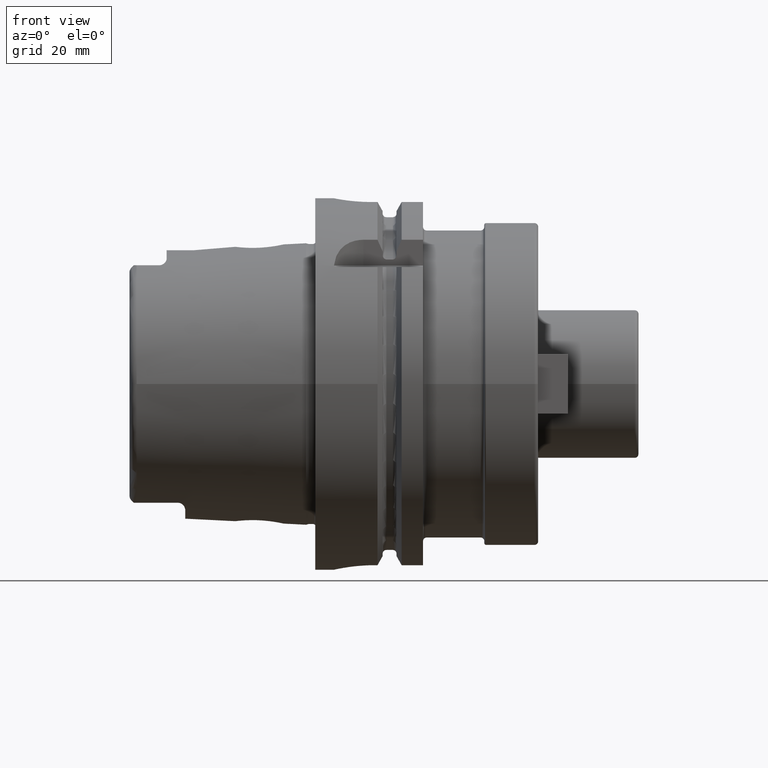
[diagram: clean part render]
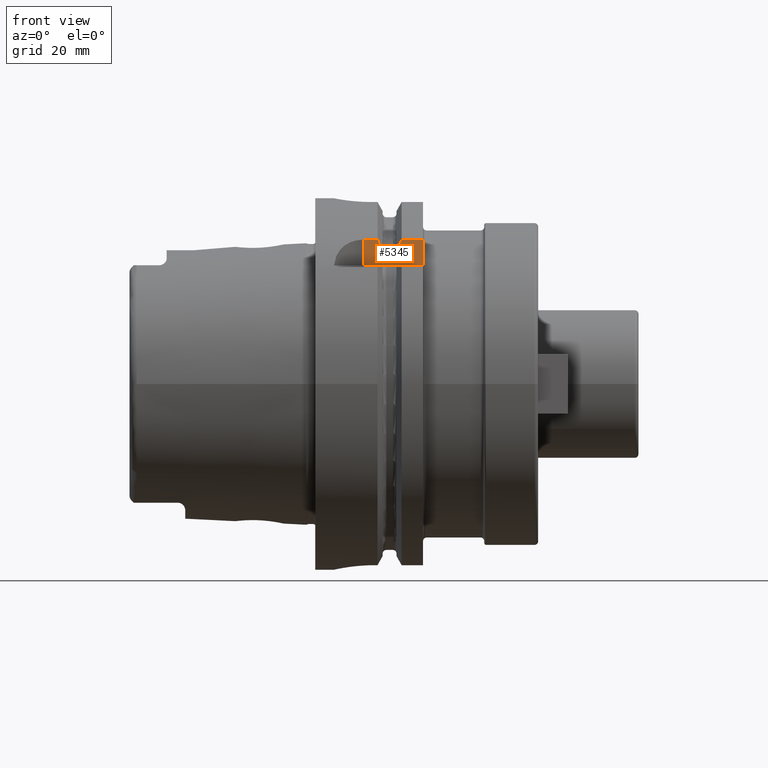
[diagram: same view with one face highlighted and labeled with its STEP entity id]
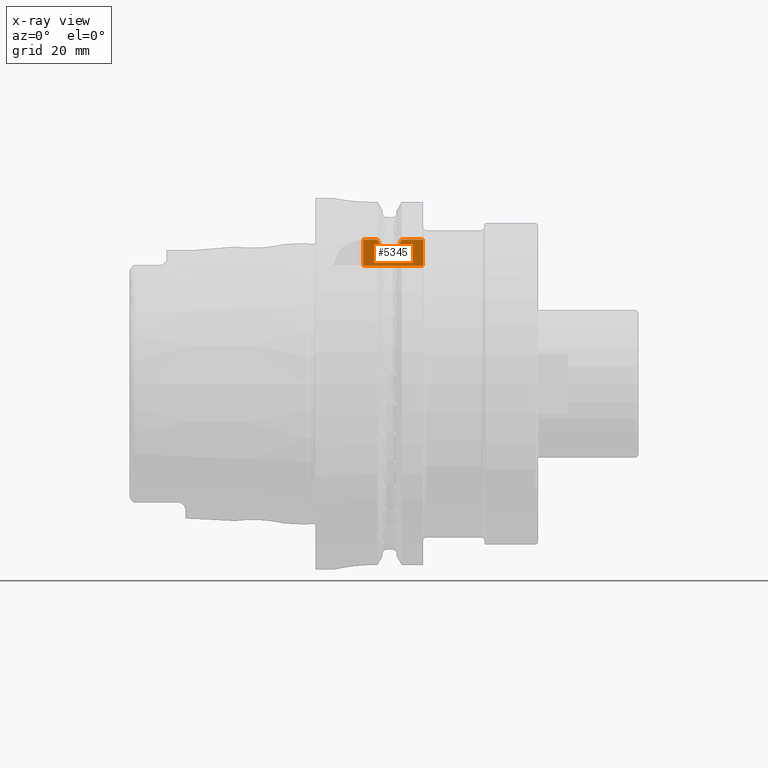
[diagram: x-ray of the same camera — body ghosted, the highlighted face saturated]
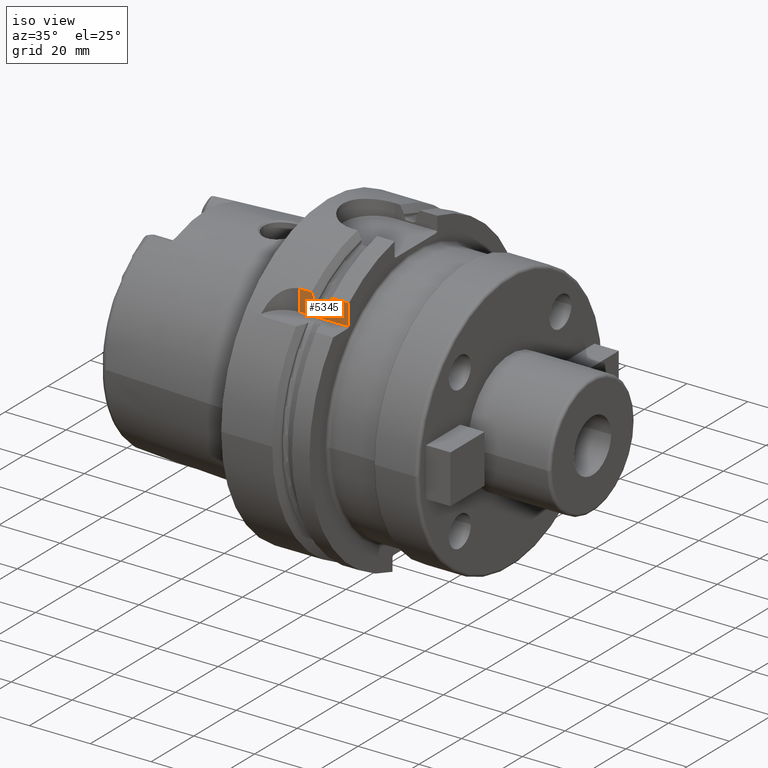
[diagram: same view with one face highlighted and labeled with its STEP entity id]
A machine part, front view. The second image highlights one B-rep face of the part: STEP entity #5345.
The next image is the same camera in x-ray: the body ghosted, the highlighted face saturated — about 0% of this face is hidden behind the body in this view.
A second angle (iso view) of the same face is appended — the face is thin or edge-on in the first view.
In plain terms, the highlighted planar face has unit normal (0, 1, 0).
Its self-contained STEP definition (entity closure, byte-faithful):
#1032=DIRECTION('',(1.E0,0.E0,0.E0));
#1033=VECTOR('',#1032,3.780530813955E0);
#1034=CARTESIAN_POINT('',(1.297187392185E1,-3.15E1,3.882975663071E1));
#1035=LINE('',#1034,#1033);
#1041=DIRECTION('',(-1.471542092665E-10,3.380772108129E-7,9.999999999999E-1));
#1042=VECTOR('',#1041,6.929754287942E0);
#1043=CARTESIAN_POINT('',(1.297187392287E1,-3.150000234279E1,3.190000234277E1));
#1044=LINE('',#1043,#1042);
#1063=DIRECTION('',(0.E0,0.E0,-1.E0));
#1064=VECTOR('',#1063,6.929756630708E0);
#1065=CARTESIAN_POINT('',(2.9E1,-3.15E1,3.882975663071E1));
#1066=LINE('',#1065,#1064);
#1136=DIRECTION('',(1.E0,0.E0,0.E0));
#1137=VECTOR('',#1136,5.752404735808E0);
#1138=CARTESIAN_POINT('',(2.324759526419E1,-3.15E1,3.882975663071E1));
#1139=LINE('',#1138,#1137);
#1331=CARTESIAN_POINT('',(1.675240473581E1,-3.15E1,3.882975663071E1));
#1332=CARTESIAN_POINT('',(1.691358654275E1,-3.15E1,3.847027062937E1));
#1333=CARTESIAN_POINT('',(1.723011989153E1,-3.15E1,3.776033431145E1));
#1334=CARTESIAN_POINT('',(1.768698718160E1,-3.15E1,3.672388881313E1));
#1335=CARTESIAN_POINT('',(1.798083426402E1,-3.15E1,3.604934646397E1));
#1336=CARTESIAN_POINT('',(1.8125E1,-3.15E1,3.571640491003E1));
#1366=DIRECTION('',(0.E0,0.E0,-1.E0));
#1367=VECTOR('',#1366,8.344611568473E-1);
#1368=CARTESIAN_POINT('',(1.8125E1,-3.15E1,3.571640491003E1));
#1369=LINE('',#1368,#1367);
#1438=CARTESIAN_POINT('',(1.8125E1,-3.15E1,3.488194375318E1));
#1439=CARTESIAN_POINT('',(1.8125E1,-3.15E1,3.481619217591E1));
#1440=CARTESIAN_POINT('',(1.813198616232E1,-3.15E1,3.468498092940E1));
#1441=CARTESIAN_POINT('',(1.816523098754E1,-3.15E1,3.448454821308E1));
#1442=CARTESIAN_POINT('',(1.822034644117E1,-3.15E1,3.429397003458E1));
#1443=CARTESIAN_POINT('',(1.829378458925E1,-3.15E1,3.412080330305E1));
#1444=CARTESIAN_POINT('',(1.838094732863E1,-3.15E1,3.396999041731E1));
#1445=CARTESIAN_POINT('',(1.847810855252E1,-3.15E1,3.384224666293E1));
#1446=CARTESIAN_POINT('',(1.858419267065E1,-3.15E1,3.373530956269E1));
#1447=CARTESIAN_POINT('',(1.870239599507E1,-3.15E1,3.364607486140E1));
#1448=CARTESIAN_POINT('',(1.883409249883E1,-3.15E1,3.357673509517E1));
#1449=CARTESIAN_POINT('',(1.897714923923E1,-3.15E1,3.353248229850E1));
#1450=CARTESIAN_POINT('',(1.907501759821E1,-3.15E1,3.352238058372E1));
#1451=CARTESIAN_POINT('',(1.9125E1,-3.15E1,3.352238058372E1));
#1497=DIRECTION('',(1.E0,0.E0,0.E0));
#1498=VECTOR('',#1497,1.75E0);
#1499=CARTESIAN_POINT('',(1.9125E1,-3.15E1,3.352238058372E1));
#1500=LINE('',#1499,#1498);
#1584=CARTESIAN_POINT('',(2.0875E1,-3.15E1,3.352238058372E1));
#1585=CARTESIAN_POINT('',(2.092499587114E1,-3.15E1,3.352238058372E1));
#1586=CARTESIAN_POINT('',(2.102286232614E1,-3.15E1,3.353252599763E1));
#1587=CARTESIAN_POINT('',(2.116518793159E1,-3.15E1,3.357644764835E1));
#1588=CARTESIAN_POINT('',(2.129735360942E1,-3.15E1,3.364589194555E1));
#1589=CARTESIAN_POINT('',(2.141544058277E1,-3.15E1,3.373500438350E1));
#1590=CARTESIAN_POINT('',(2.152152744397E1,-3.15E1,3.384182994860E1));
#1591=CARTESIAN_POINT('',(2.161863896066E1,-3.15E1,3.396938223481E1));
#1592=CARTESIAN_POINT('',(2.170580797394E1,-3.15E1,3.411998861591E1));
#1593=CARTESIAN_POINT('',(2.177938214995E1,-3.15E1,3.429317181091E1));
#1594=CARTESIAN_POINT('',(2.183468466632E1,-3.15E1,3.448409517800E1));
#1595=CARTESIAN_POINT('',(2.186801594182E1,-3.15E1,3.468491126500E1));
#1596=CARTESIAN_POINT('',(2.1875E1,-3.15E1,3.481618857579E1));
#1597=CARTESIAN_POINT('',(2.1875E1,-3.15E1,3.488194375318E1));
#1638=DIRECTION('',(0.E0,1.277248311553E-14,-1.E0));
#1639=VECTOR('',#1638,8.344611568473E-1);
#1640=CARTESIAN_POINT('',(2.1875E1,-3.15E1,3.571640491003E1));
#1641=LINE('',#1640,#1639);
#1694=CARTESIAN_POINT('',(2.324759526419E1,-3.15E1,3.882975663071E1));
#1695=CARTESIAN_POINT('',(2.308641345725E1,-3.15E1,3.847027062937E1));
#1696=CARTESIAN_POINT('',(2.276988010847E1,-3.15E1,3.776033431145E1));
#1697=CARTESIAN_POINT('',(2.231301281840E1,-3.15E1,3.672388881313E1));
#1698=CARTESIAN_POINT('',(2.201916573598E1,-3.15E1,3.604934646397E1));
#1699=CARTESIAN_POINT('',(2.1875E1,-3.15E1,3.571640491003E1));
#1768=DIRECTION('',(1.E0,1.461675550849E-7,-1.461659664838E-7));
#1769=VECTOR('',#1768,1.602812607713E1);
#1770=CARTESIAN_POINT('',(1.297187392287E1,-3.150000234279E1,3.190000234277E1));
#1771=LINE('',#1770,#1769);
#3394=CARTESIAN_POINT('',(2.9E1,-3.15E1,3.19E1));
#3396=VERTEX_POINT('',#3394);
#3398=CARTESIAN_POINT('',(1.297187392185E1,-3.15E1,3.882975663071E1));
#3399=CARTESIAN_POINT('',(1.675240473581E1,-3.15E1,3.882975663071E1));
#3400=VERTEX_POINT('',#3398);
#3401=VERTEX_POINT('',#3399);
#3406=CARTESIAN_POINT('',(2.324759526419E1,-3.15E1,3.882975663071E1));
#3407=CARTESIAN_POINT('',(2.9E1,-3.15E1,3.882975663071E1));
#3408=VERTEX_POINT('',#3406);
#3409=VERTEX_POINT('',#3407);
#3414=CARTESIAN_POINT('',(1.8125E1,-3.15E1,3.571640491003E1));
#3415=CARTESIAN_POINT('',(1.8125E1,-3.15E1,3.488194375318E1));
#3416=VERTEX_POINT('',#3414);
#3417=VERTEX_POINT('',#3415);
#3419=VERTEX_POINT('',#1451);
#3422=CARTESIAN_POINT('',(2.0875E1,-3.15E1,3.352238058372E1));
#3423=VERTEX_POINT('',#3422);
#3425=VERTEX_POINT('',#1597);
#3428=CARTESIAN_POINT('',(2.1875E1,-3.15E1,3.571640491003E1));
#3429=VERTEX_POINT('',#3428);
#3433=CARTESIAN_POINT('',(1.297187392287E1,-3.150000234279E1,3.190000234277E1));
#3434=VERTEX_POINT('',#3433);
#5326=CARTESIAN_POINT('',(2.9E1,-3.15E1,3.15E1));
#5327=DIRECTION('',(0.E0,1.E0,0.E0));
#5328=DIRECTION('',(-1.E0,0.E0,0.E0));
#5329=AXIS2_PLACEMENT_3D('',#5326,#5327,#5328);
#5330=PLANE('',#5329);
#5331=ORIENTED_EDGE('',*,*,#4651,.F.);
#5332=ORIENTED_EDGE('',*,*,#4622,.T.);
#5333=ORIENTED_EDGE('',*,*,#4609,.T.);
#5334=ORIENTED_EDGE('',*,*,#4957,.T.);
#5335=ORIENTED_EDGE('',*,*,#4999,.T.);
#5336=ORIENTED_EDGE('',*,*,#5041,.T.);
#5337=ORIENTED_EDGE('',*,*,#5083,.T.);
#5338=ORIENTED_EDGE('',*,*,#5125,.T.);
#5339=ORIENTED_EDGE('',*,*,#5167,.F.);
#5340=ORIENTED_EDGE('',*,*,#5207,.F.);
#5341=ORIENTED_EDGE('',*,*,#4763,.T.);
#5342=ORIENTED_EDGE('',*,*,#4664,.T.);
#5343=EDGE_LOOP('',(#5331,#5332,#5333,#5334,#5335,#5336,#5337,#5338,#5339,#5340,
#5341,#5342));
#5344=FACE_OUTER_BOUND('',#5343,.F.);
#5345=ADVANCED_FACE('',(#5344),#5330,.F.);
#1337=B_SPLINE_CURVE_WITH_KNOTS('',3,(#1331,#1332,#1333,#1334,#1335,#1336),
.UNSPECIFIED.,.F.,.F.,(4,1,1,4),(0.E0,3.333333333333E-1,6.666666666667E-1,1.E0),
.UNSPECIFIED.);
#1452=B_SPLINE_CURVE_WITH_KNOTS('',3,(#1438,#1439,#1440,#1441,#1442,#1443,#1444,
#1445,#1446,#1447,#1448,#1449,#1450,#1451),.UNSPECIFIED.,.F.,.F.,(4,1,1,1,1,1,1,
1,1,1,1,4),(0.E0,9.090909090909E-2,1.818181818182E-1,2.727272727273E-1,
3.636363636364E-1,4.545454545455E-1,5.454545454545E-1,6.363636363636E-1,
7.272727272727E-1,8.181818181818E-1,9.090909090909E-1,1.E0),.UNSPECIFIED.);
#1598=B_SPLINE_CURVE_WITH_KNOTS('',3,(#1584,#1585,#1586,#1587,#1588,#1589,#1590,
#1591,#1592,#1593,#1594,#1595,#1596,#1597),.UNSPECIFIED.,.F.,.F.,(4,1,1,1,1,1,1,
1,1,1,1,4),(0.E0,9.090909090909E-2,1.818181818182E-1,2.727272727273E-1,
3.636363636364E-1,4.545454545455E-1,5.454545454545E-1,6.363636363636E-1,
7.272727272727E-1,8.181818181818E-1,9.090909090909E-1,1.E0),.UNSPECIFIED.);
#1700=B_SPLINE_CURVE_WITH_KNOTS('',3,(#1694,#1695,#1696,#1697,#1698,#1699),
.UNSPECIFIED.,.F.,.F.,(4,1,1,4),(0.E0,3.333333333333E-1,6.666666666667E-1,1.E0),
.UNSPECIFIED.);
#4609=EDGE_CURVE('',#3400,#3401,#1035,.T.);
#4622=EDGE_CURVE('',#3434,#3400,#1044,.T.);
#4651=EDGE_CURVE('',#3434,#3396,#1771,.T.);
#4664=EDGE_CURVE('',#3409,#3396,#1066,.T.);
#4763=EDGE_CURVE('',#3408,#3409,#1139,.T.);
#4957=EDGE_CURVE('',#3401,#3416,#1337,.T.);
#4999=EDGE_CURVE('',#3416,#3417,#1369,.T.);
#5041=EDGE_CURVE('',#3417,#3419,#1452,.T.);
#5083=EDGE_CURVE('',#3419,#3423,#1500,.T.);
#5125=EDGE_CURVE('',#3423,#3425,#1598,.T.);
#5167=EDGE_CURVE('',#3429,#3425,#1641,.T.);
#5207=EDGE_CURVE('',#3408,#3429,#1700,.T.);